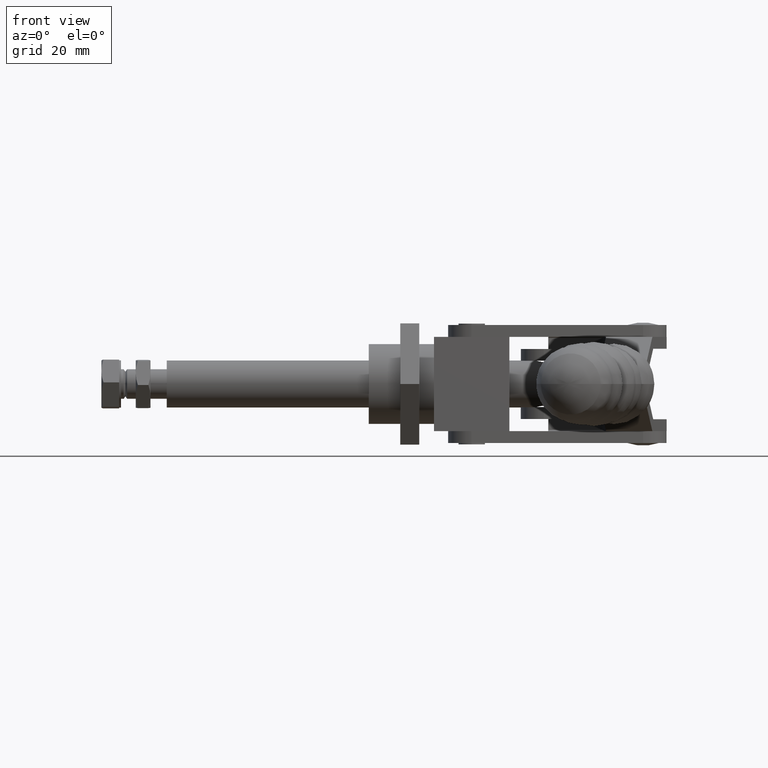
[diagram: clean part render]
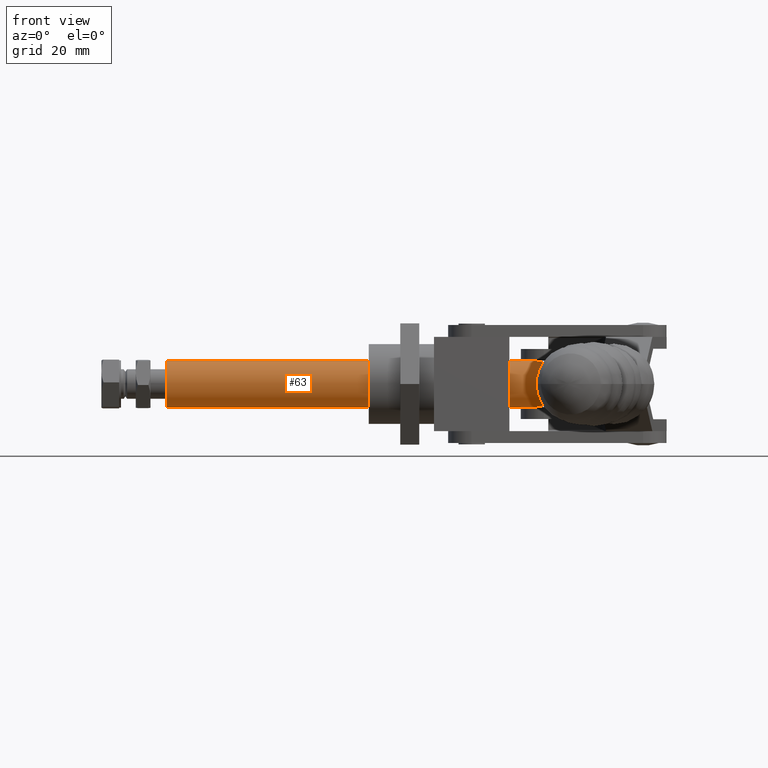
[diagram: same view with one face highlighted and labeled with its STEP entity id]
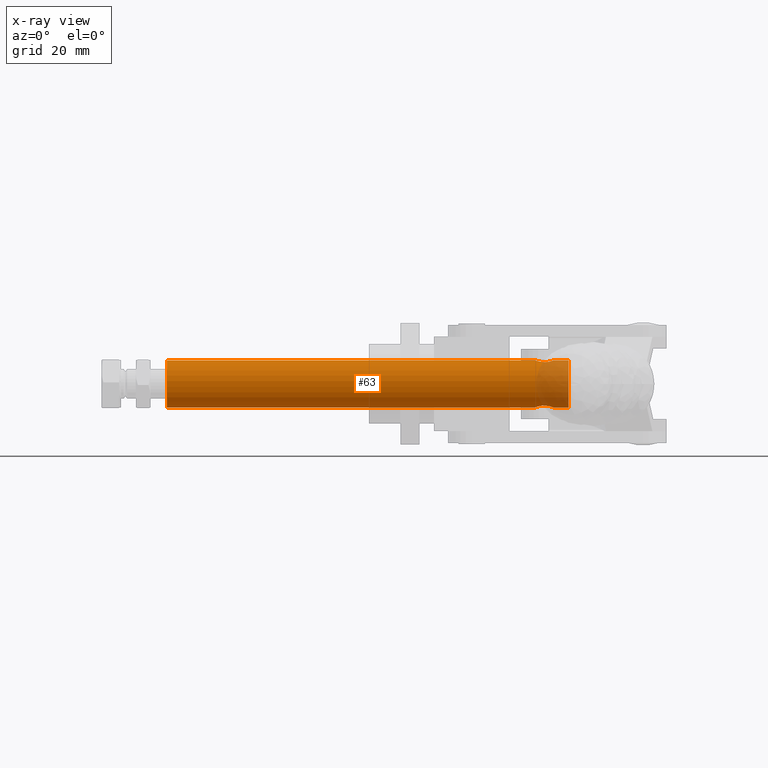
[diagram: x-ray of the same camera — body ghosted, the highlighted face saturated]
A machine part, front view. The second image highlights one B-rep face of the part: STEP entity #63.
The next image is the same camera in x-ray: the body ghosted, the highlighted face saturated — about 7% of this face is hidden behind the body in this view.
In plain terms, the highlighted cylindrical surface (edge-blend (fillet) strip) has radius 7.95 mm, axis along (1, 0, 0).
Its self-contained STEP definition (entity closure, byte-faithful):
#63 = ADVANCED_FACE ( 'NONE', ( #2134 ), #4196, .T. ) ;
#159 = EDGE_CURVE ( 'NONE', #7672, #9316, #7038, .T. ) ;
#186 = AXIS2_PLACEMENT_3D ( 'NONE', #9688, #3590, #1294 ) ;
#302 = EDGE_LOOP ( 'NONE', ( #6598, #2865, #9121, #3338, #5825, #3498, #772, #7031 ) ) ;
#496 = CARTESIAN_POINT ( 'NONE',  ( 20.05592483543547300, 2.875540512884690900E-015, -7.950000000000012600 ) ) ;
#520 = CARTESIAN_POINT ( 'NONE',  ( 12.64106736075064700, -2.902187732580282300, 7.401457112366190700 ) ) ;
#554 = CARTESIAN_POINT ( 'NONE',  ( 9.257476508324764100, -1.511989481040749500, 7.806651330740417700 ) ) ;
#571 = CARTESIAN_POINT ( 'NONE',  ( 10.34013101195441400, -2.618109026542809700, -7.508242429451926500 ) ) ;
#600 = CARTESIAN_POINT ( 'NONE',  ( 13.83838033551758600, -2.260018779978631100, -7.623329273496347400 ) ) ;
#772 = ORIENTED_EDGE ( 'NONE', *, *, #6217, .F. ) ;
#973 = LINE ( 'NONE', #1301, #8789 ) ;
#981 = B_SPLINE_CURVE_WITH_KNOTS ( 'NONE', 3,
 ( #5017, #9561, #6529, #1990, #7307, #2755, #8052, #3527, #8826, #4284, #9586, #5053, #520, #5794, #1266, #6570, #2026, #7330, #2795, #8083, #3558, #8853, #4326, #9621, #5083, #554, #5834, #1300, #6605, #2059, #7357, #2818 ),
 .UNSPECIFIED., .F., .F.,
 ( 4, 2, 2, 2, 2, 2, 2, 2, 2, 2, 2, 2, 2, 2, 2, 4 ),
 ( 0.009463894243306077100, 0.01005525185929838000, 0.01064660947529068300, 0.01123796709128298600, 0.01182932470727528900, 0.01301203993925989200, 0.01360339755525219100, 0.01419475517124449100, 0.01478611278723679000, 0.01537747040322908800, 0.01596882801922138600, 0.01656018563521368500, 0.01715154325120598500, 0.01774290086719828400, 0.01833425848319058400, 0.01892561609918288300 ),
 .UNSPECIFIED. ) ;
#1222 = CARTESIAN_POINT ( 'NONE',  ( 9.011641365048356900, -0.9739724288942910300, -7.892239082886875100 ) ) ;
#1266 = CARTESIAN_POINT ( 'NONE',  ( 12.05731749194104000, -2.999753580226514100, 7.362335127350209300 ) ) ;
#1294 = DIRECTION ( 'NONE',  ( 0.0000000000000000000, 0.0000000000000000000, -1.000000000000000000 ) ) ;
#1300 = CARTESIAN_POINT ( 'NONE',  ( 9.012556517788757700, -0.9764367010605500300, 7.891911773494046000 ) ) ;
#1301 = CARTESIAN_POINT ( 'NONE',  ( -138.4300708062967300, 2.875540512884690900E-015, -7.950000000000012600 ) ) ;
#1319 = CARTESIAN_POINT ( 'NONE',  ( 9.598105084093893100, -1.984884855901102800, -7.699540269977746700 ) ) ;
#1358 = CARTESIAN_POINT ( 'NONE',  ( 14.23671168956418100, -1.835728698541820400, -7.736925573887818400 ) ) ;
#1391 = EDGE_CURVE ( 'NONE', #3757, #7802, #9050, .T. ) ;
#1602 = CARTESIAN_POINT ( 'NONE',  ( -115.9440751645645400, 2.875540512884690900E-015, -7.950000000000012600 ) ) ;
#1608 = CARTESIAN_POINT ( 'NONE',  ( -115.9440751645645400, 3.849134718206836600E-015, 7.949999999999988600 ) ) ;
#1724 = CARTESIAN_POINT ( 'NONE',  ( -115.9440751645645400, 2.875540512884690900E-015, -1.172821331496217400E-014 ) ) ;
#1861 = CARTESIAN_POINT ( 'NONE',  ( -138.4300708062967300, 2.875540512884690900E-015, -7.950000000000012600 ) ) ;
#1990 = CARTESIAN_POINT ( 'NONE',  ( 14.75876237261779200, -0.7824697002517992900, 7.913764986640424000 ) ) ;
#2026 = CARTESIAN_POINT ( 'NONE',  ( 11.46116031835136100, -2.980431805880208200, 7.370295351436913800 ) ) ;
#2059 = CARTESIAN_POINT ( 'NONE',  ( 8.876011216420550900, -0.3995205350492522800, 7.942357843459481300 ) ) ;
#2100 = CARTESIAN_POINT ( 'NONE',  ( 14.54863087306038800, -1.336976520329829200, -7.838889835676930300 ) ) ;
#2134 = FACE_OUTER_BOUND ( 'NONE', #302, .T. ) ;
#2155 = CARTESIAN_POINT ( 'NONE',  ( 8.855924835435454100, 3.242934552628896700E-015, -7.950000000000012600 ) ) ;
#2267 = CARTESIAN_POINT ( 'NONE',  ( 8.855924835435454100, 3.242934552628896700E-015, 7.949999999999988600 ) ) ;
#2459 = VERTEX_POINT ( 'NONE', #2267 ) ;
#2471 = DIRECTION ( 'NONE',  ( 0.0000000000000000000, 0.0000000000000000000, -1.000000000000000000 ) ) ;
#2477 = EDGE_CURVE ( 'NONE', #3754, #2459, #981, .T. ) ;
#2755 = CARTESIAN_POINT ( 'NONE',  ( 14.54895556841057100, -1.336471557278723800, 7.838998903576777100 ) ) ;
#2795 = CARTESIAN_POINT ( 'NONE',  ( 10.88683518227711600, -2.846057294275131000, 7.423545736736076400 ) ) ;
#2808 = CARTESIAN_POINT ( 'NONE',  ( 12.63706729098193900, -2.903210160769249100, -7.401053849238059500 ) ) ;
#2818 = CARTESIAN_POINT ( 'NONE',  ( 8.855924835435454100, 3.242934552628896700E-015, 7.949999999999988600 ) ) ;
#2865 = ORIENTED_EDGE ( 'NONE', *, *, #1391, .T. ) ;
#2869 = CARTESIAN_POINT ( 'NONE',  ( 14.75708920441912200, -0.7891432942477085700, -7.913148402035224300 ) ) ;
#3087 = CIRCLE ( 'NONE', #9395, 7.950000000000000200 ) ;
#3204 = CARTESIAN_POINT ( 'NONE',  ( 14.85592483543545200, 2.428544431195907400E-015, -7.950000000000012600 ) ) ;
#3338 = ORIENTED_EDGE ( 'NONE', *, *, #159, .T. ) ;
#3432 = CARTESIAN_POINT ( 'NONE',  ( 20.05592483543547300, 2.875540512884690900E-015, -1.172821331496217400E-014 ) ) ;
#3498 = ORIENTED_EDGE ( 'NONE', *, *, #4252, .T. ) ;
#3499 = DIRECTION ( 'NONE',  ( 1.000000000000000000, 0.0000000000000000000, 0.0000000000000000000 ) ) ;
#3527 = CARTESIAN_POINT ( 'NONE',  ( 14.23902583322276900, -1.832764488313829700, 7.737638235563405700 ) ) ;
#3558 = CARTESIAN_POINT ( 'NONE',  ( 10.34926981468165300, -2.601496060368955600, 7.513167035852625900 ) ) ;
#3575 = CARTESIAN_POINT ( 'NONE',  ( 12.04990787153459300, -3.000241844565521000, -7.362136167147074400 ) ) ;
#3590 = DIRECTION ( 'NONE',  ( 1.000000000000000000, 0.0000000000000000000, 0.0000000000000000000 ) ) ;
#3640 = CARTESIAN_POINT ( 'NONE',  ( 14.85592483543545100, -0.2000870599648977600, -7.950000000000012600 ) ) ;
#3711 = LINE ( 'NONE', #1861, #9513 ) ;
#3754 = VERTEX_POINT ( 'NONE', #6131 ) ;
#3757 = VERTEX_POINT ( 'NONE', #1608 ) ;
#3865 = EDGE_CURVE ( 'NONE', #3757, #2459, #5358, .T. ) ;
#4196 = CYLINDRICAL_SURFACE ( 'NONE', #186, 7.950000000000000200 ) ;
#4204 = DIRECTION ( 'NONE',  ( 0.0000000000000000000, 0.0000000000000000000, -1.000000000000000000 ) ) ;
#4252 = EDGE_CURVE ( 'NONE', #4350, #8044, #3087, .T. ) ;
#4284 = CARTESIAN_POINT ( 'NONE',  ( 13.70275848162260200, -2.395678852902767700, 7.585774573142260600 ) ) ;
#4311 = CARTESIAN_POINT ( 'NONE',  ( 8.855924835435454100, 3.242934552628896700E-015, -7.950000000000012600 ) ) ;
#4326 = CARTESIAN_POINT ( 'NONE',  ( 9.873469335353325600, -2.260018779978629300, 7.623329273496323400 ) ) ;
#4344 = CARTESIAN_POINT ( 'NONE',  ( 11.45871235215454900, -2.980161851867044700, -7.370406797322130100 ) ) ;
#4350 = VERTEX_POINT ( 'NONE', #496 ) ;
#4372 = CARTESIAN_POINT ( 'NONE',  ( 13.19053610000776700, -2.694065635917566300, -7.480045706884250300 ) ) ;
#5017 = CARTESIAN_POINT ( 'NONE',  ( 14.85592483543545200, 2.875540512884690900E-015, 7.949999999999988600 ) ) ;
#5053 = CARTESIAN_POINT ( 'NONE',  ( 12.83183776293624800, -2.843523413914304000, 7.424506677759313600 ) ) ;
#5083 = CARTESIAN_POINT ( 'NONE',  ( 9.475137981306724900, -1.835728698541817500, 7.736925573887793600 ) ) ;
#5103 = CARTESIAN_POINT ( 'NONE',  ( 10.88001190793465300, -2.843523413914304400, -7.424506677759340300 ) ) ;
#5136 = VECTOR ( 'NONE', #9341, 1000.000000000000000 ) ;
#5138 = CARTESIAN_POINT ( 'NONE',  ( 13.68572279771705900, -2.385294640271497600, -7.584578441800847100 ) ) ;
#5358 = LINE ( 'NONE', #5569, #5136 ) ;
#5569 = CARTESIAN_POINT ( 'NONE',  ( -138.4300708062967300, 3.849134718206836600E-015, 7.949999999999988600 ) ) ;
#5794 = CARTESIAN_POINT ( 'NONE',  ( 12.25313731871635300, -2.980161851867045200, 7.370406797322106100 ) ) ;
#5821 = CARTESIAN_POINT ( 'NONE',  ( 8.855924835435457600, -0.2001329994482656500, -7.950000000000014400 ) ) ;
#5825 = ORIENTED_EDGE ( 'NONE', *, *, #6706, .T. ) ;
#5834 = CARTESIAN_POINT ( 'NONE',  ( 9.163218797810522200, -1.336976520329822500, 7.838889835676906300 ) ) ;
#5850 = CARTESIAN_POINT ( 'NONE',  ( 10.00909118924829700, -2.395678852902767700, -7.585774573142283600 ) ) ;
#5880 = CARTESIAN_POINT ( 'NONE',  ( 14.11355390726048000, -1.985176483266020400, -7.699474555337526600 ) ) ;
#6131 = CARTESIAN_POINT ( 'NONE',  ( 14.85592483543545200, 2.875540512884690900E-015, 7.949999999999988600 ) ) ;
#6217 = EDGE_CURVE ( 'NONE', #3754, #8044, #7035, .T. ) ;
#6529 = CARTESIAN_POINT ( 'NONE',  ( 14.83610187865759600, -0.3965720491142782400, 7.942459676035464400 ) ) ;
#6551 = CARTESIAN_POINT ( 'NONE',  ( 12.82501448859378500, -2.846057294275131000, -7.423545736736101300 ) ) ;
#6570 = CARTESIAN_POINT ( 'NONE',  ( 11.66194179933630800, -3.000241844565520600, 7.362136167147050400 ) ) ;
#6593 = CARTESIAN_POINT ( 'NONE',  ( 8.953087298253112900, -0.7824697002517996300, -7.913764986640446300 ) ) ;
#6598 = ORIENTED_EDGE ( 'NONE', *, *, #3865, .F. ) ;
#6605 = CARTESIAN_POINT ( 'NONE',  ( 8.954760466451785900, -0.7891432942477089000, 7.913148402035198500 ) ) ;
#6621 = CARTESIAN_POINT ( 'NONE',  ( 9.472823837648135700, -1.832764488313828300, -7.737638235563430600 ) ) ;
#6654 = CARTESIAN_POINT ( 'NONE',  ( 14.45437316254614000, -1.511989481040752800, -7.806651330740444400 ) ) ;
#6706 = EDGE_CURVE ( 'NONE', #9316, #4350, #973, .T. ) ;
#7031 = ORIENTED_EDGE ( 'NONE', *, *, #2477, .T. ) ;
#7035 = LINE ( 'NONE', #8760, #9048 ) ;
#7038 = B_SPLINE_CURVE_WITH_KNOTS ( 'NONE', 3,
 ( #4311, #5821, #7321, #6593, #1222, #8811, #7349, #6621, #1319, #5850, #571, #5103, #9643, #4344, #8873, #3575, #8110, #2808, #6551, #4372, #9677, #5138, #600, #5880, #1358, #6654, #2100, #7411, #2869, #8174, #3640, #8942 ),
 .UNSPECIFIED., .F., .F.,
 ( 4, 2, 2, 2, 2, 2, 2, 2, 2, 2, 2, 2, 2, 2, 2, 4 ),
 ( 0.009463894243306070200, 0.01005525185929837300, 0.01064660947529067600, 0.01123796709128297900, 0.01182932470727528200, 0.01301203993925988300, 0.01360339755525218200, 0.01419475517124448000, 0.01478611278723678000, 0.01537747040322907900, 0.01596882801922137900, 0.01656018563521367800, 0.01715154325120597400, 0.01774290086719827400, 0.01833425848319057300, 0.01892561609918287300 ),
 .UNSPECIFIED. ) ;
#7039 = DIRECTION ( 'NONE',  ( 1.000000000000000000, 0.0000000000000000000, 0.0000000000000000000 ) ) ;
#7184 = DIRECTION ( 'NONE',  ( 1.000000000000000000, 0.0000000000000000000, 0.0000000000000000000 ) ) ;
#7307 = CARTESIAN_POINT ( 'NONE',  ( 14.70020830582255100, -0.9739724288942902500, 7.892239082886852100 ) ) ;
#7321 = CARTESIAN_POINT ( 'NONE',  ( 8.875747792213308800, -0.3965720491142790100, -7.942459676035486600 ) ) ;
#7330 = CARTESIAN_POINT ( 'NONE',  ( 11.07478237988896600, -2.903210160769249100, 7.401053849238037300 ) ) ;
#7349 = CARTESIAN_POINT ( 'NONE',  ( 9.255180672080637500, -1.508086811843076800, -7.807416045147228100 ) ) ;
#7357 = CARTESIAN_POINT ( 'NONE',  ( 8.855924835435454100, -0.2000870599648968100, 7.949999999999988600 ) ) ;
#7361 = CARTESIAN_POINT ( 'NONE',  ( 20.05592483543547300, 3.849134718206836600E-015, 7.949999999999988600 ) ) ;
#7411 = CARTESIAN_POINT ( 'NONE',  ( 14.69929315308214500, -0.9764367010605569100, -7.891911773494072700 ) ) ;
#7672 = VERTEX_POINT ( 'NONE', #2155 ) ;
#7802 = VERTEX_POINT ( 'NONE', #1602 ) ;
#8044 = VERTEX_POINT ( 'NONE', #7361 ) ;
#8052 = CARTESIAN_POINT ( 'NONE',  ( 14.45666899879027100, -1.508086811843076800, 7.807416045147204100 ) ) ;
#8083 = CARTESIAN_POINT ( 'NONE',  ( 10.52131357086314300, -2.694065635917566300, 7.480045706884227200 ) ) ;
#8110 = CARTESIAN_POINT ( 'NONE',  ( 12.25068935251954500, -2.980431805880208200, -7.370295351436938700 ) ) ;
#8174 = CARTESIAN_POINT ( 'NONE',  ( 14.83583845445035700, -0.3995205350492517200, -7.942357843459504400 ) ) ;
#8294 = AXIS2_PLACEMENT_3D ( 'NONE', #1724, #7039, #2471 ) ;
#8741 = DIRECTION ( 'NONE',  ( -1.000000000000000000, -0.0000000000000000000, -0.0000000000000000000 ) ) ;
#8760 = CARTESIAN_POINT ( 'NONE',  ( -138.4300708062967300, 3.849134718206836600E-015, 7.949999999999988600 ) ) ;
#8789 = VECTOR ( 'NONE', #8884, 1000.000000000000000 ) ;
#8811 = CARTESIAN_POINT ( 'NONE',  ( 9.162894102460335000, -1.336471557278724200, -7.838998903576798400 ) ) ;
#8826 = CARTESIAN_POINT ( 'NONE',  ( 14.11374458677701500, -1.984884855901103600, 7.699540269977722700 ) ) ;
#8853 = CARTESIAN_POINT ( 'NONE',  ( 10.02612687315385500, -2.385294640271496300, 7.584578441800824900 ) ) ;
#8873 = CARTESIAN_POINT ( 'NONE',  ( 11.65453217892986800, -2.999753580226513200, -7.362335127350234200 ) ) ;
#8884 = DIRECTION ( 'NONE',  ( 1.000000000000000000, 0.0000000000000000000, 0.0000000000000000000 ) ) ;
#8942 = CARTESIAN_POINT ( 'NONE',  ( 14.85592483543545200, 2.428544431195907400E-015, -7.950000000000012600 ) ) ;
#8956 = EDGE_CURVE ( 'NONE', #7802, #7672, #3711, .T. ) ;
#9048 = VECTOR ( 'NONE', #3499, 1000.000000000000000 ) ;
#9050 = CIRCLE ( 'NONE', #8294, 7.950000000000000200 ) ;
#9121 = ORIENTED_EDGE ( 'NONE', *, *, #8956, .T. ) ;
#9316 = VERTEX_POINT ( 'NONE', #3204 ) ;
#9341 = DIRECTION ( 'NONE',  ( 1.000000000000000000, 0.0000000000000000000, 0.0000000000000000000 ) ) ;
#9395 = AXIS2_PLACEMENT_3D ( 'NONE', #3432, #8741, #4204 ) ;
#9513 = VECTOR ( 'NONE', #7184, 1000.000000000000000 ) ;
#9561 = CARTESIAN_POINT ( 'NONE',  ( 14.85592483543545600, -0.2001329994482650100, 7.949999999999988600 ) ) ;
#9586 = CARTESIAN_POINT ( 'NONE',  ( 13.37171865891649200, -2.618109026542809700, 7.508242429451900800 ) ) ;
#9621 = CARTESIAN_POINT ( 'NONE',  ( 9.598295763610426700, -1.985176483266018800, 7.699474555337502600 ) ) ;
#9643 = CARTESIAN_POINT ( 'NONE',  ( 11.07078231012026000, -2.902187732580281000, -7.401457112366214700 ) ) ;
#9677 = CARTESIAN_POINT ( 'NONE',  ( 13.36257985618925300, -2.601496060368956100, -7.513167035852646300 ) ) ;
#9688 = CARTESIAN_POINT ( 'NONE',  ( -138.4300708062967300, 2.875540512884690900E-015, -1.172821331496217400E-014 ) ) ;